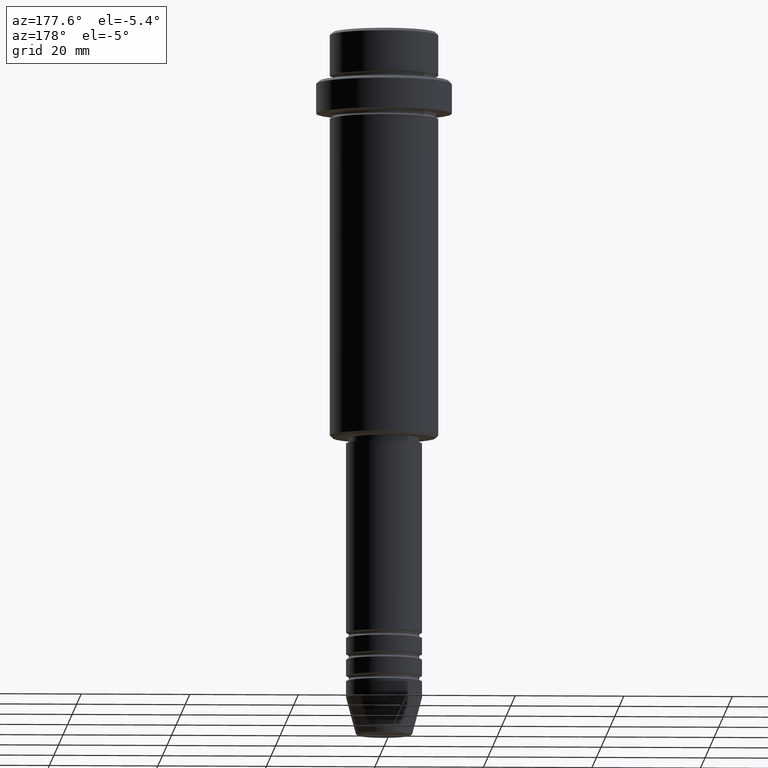
[diagram: clean part render]
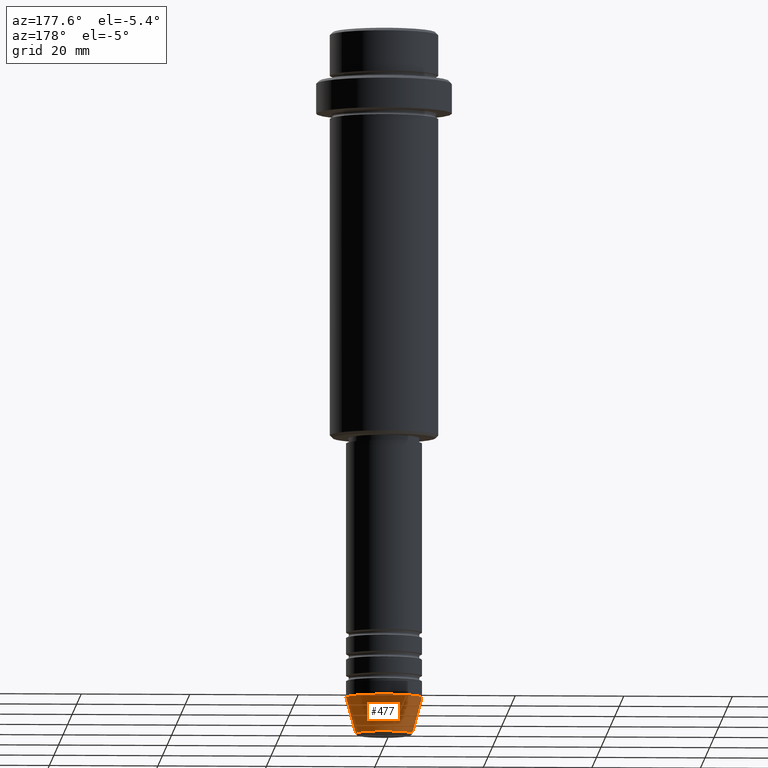
[diagram: same view with one face highlighted and labeled with its STEP entity id]
A machine part, auxiliary view. The second image highlights one B-rep face of the part: STEP entity #477.
In plain terms, the highlighted conical surface has half-angle 15 deg.
Its self-contained STEP definition (entity closure, byte-faithful):
#40 = VERTEX_POINT ( 'NONE', #544 ) ;
#52 = EDGE_CURVE ( 'NONE', #1149, #1186, #581, .T. ) ;
#54 = CIRCLE ( 'NONE', #101, 5.223655072137191269 ) ;
#62 = DIRECTION ( 'NONE',  ( -0.2588190451025214056, 3.169619151431772953E-17, 0.9659258262890680902 ) ) ;
#76 = VECTOR ( 'NONE', #1015, 1000.000000000000000 ) ;
#101 = AXIS2_PLACEMENT_3D ( 'NONE', #437, #443, #892 ) ;
#190 = LINE ( 'NONE', #509, #76 ) ;
#192 = ORIENTED_EDGE ( 'NONE', *, *, #442, .T. ) ;
#239 = DIRECTION ( 'NONE',  ( -0.000000000000000000, -0.000000000000000000, 1.000000000000000000 ) ) ;
#255 = CONICAL_SURFACE ( 'NONE', #603, 7.000000000000000000, 0.2617993877991501295 ) ;
#387 = VERTEX_POINT ( 'NONE', #627 ) ;
#437 = CARTESIAN_POINT ( 'NONE',  ( 0.000000000000000000, 0.000000000000000000, -129.6294095225512422 ) ) ;
#442 = EDGE_CURVE ( 'NONE', #387, #40, #54, .T. ) ;
#443 = DIRECTION ( 'NONE',  ( -0.000000000000000000, -0.000000000000000000, 1.000000000000000000 ) ) ;
#462 = DIRECTION ( 'NONE',  ( -0.000000000000000000, -0.000000000000000000, 1.000000000000000000 ) ) ;
#464 = CARTESIAN_POINT ( 'NONE',  ( 0.000000000000000000, 0.000000000000000000, -123.0000000000000000 ) ) ;
#469 = AXIS2_PLACEMENT_3D ( 'NONE', #464, #239, #788 ) ;
#477 = ADVANCED_FACE ( 'NONE', ( #548 ), #255, .T. ) ;
#509 = CARTESIAN_POINT ( 'NONE',  ( 7.000000000000000000, 0.000000000000000000, -123.0000000000000000 ) ) ;
#544 = CARTESIAN_POINT ( 'NONE',  ( -5.223655072137191269, 7.484830028987061160E-16, -129.6294095225512422 ) ) ;
#548 = FACE_OUTER_BOUND ( 'NONE', #903, .T. ) ;
#581 = CIRCLE ( 'NONE', #469, 7.000000000000000000 ) ;
#603 = AXIS2_PLACEMENT_3D ( 'NONE', #1098, #462, #1324 ) ;
#609 = ORIENTED_EDGE ( 'NONE', *, *, #52, .F. ) ;
#627 = CARTESIAN_POINT ( 'NONE',  ( 5.223655072137191269, 0.000000000000000000, -129.6294095225512422 ) ) ;
#645 = EDGE_CURVE ( 'NONE', #387, #1149, #190, .T. ) ;
#714 = LINE ( 'NONE', #832, #956 ) ;
#788 = DIRECTION ( 'NONE',  ( 1.000000000000000000, 0.000000000000000000, 0.000000000000000000 ) ) ;
#832 = CARTESIAN_POINT ( 'NONE',  ( -7.000000000000000000, 8.572527594031473190E-16, -123.0000000000000000 ) ) ;
#892 = DIRECTION ( 'NONE',  ( 1.000000000000000000, 0.000000000000000000, 0.000000000000000000 ) ) ;
#903 = EDGE_LOOP ( 'NONE', ( #192, #1085, #609, #1416 ) ) ;
#956 = VECTOR ( 'NONE', #62, 1000.000000000000000 ) ;
#1015 = DIRECTION ( 'NONE',  ( 0.2588190451025214056, 0.000000000000000000, 0.9659258262890680902 ) ) ;
#1043 = CARTESIAN_POINT ( 'NONE',  ( 7.000000000000000000, 0.000000000000000000, -123.0000000000000000 ) ) ;
#1085 = ORIENTED_EDGE ( 'NONE', *, *, #1106, .T. ) ;
#1098 = CARTESIAN_POINT ( 'NONE',  ( 0.000000000000000000, 0.000000000000000000, -123.0000000000000000 ) ) ;
#1106 = EDGE_CURVE ( 'NONE', #40, #1186, #714, .T. ) ;
#1149 = VERTEX_POINT ( 'NONE', #1043 ) ;
#1186 = VERTEX_POINT ( 'NONE', #1401 ) ;
#1324 = DIRECTION ( 'NONE',  ( 1.000000000000000000, 0.000000000000000000, 0.000000000000000000 ) ) ;
#1401 = CARTESIAN_POINT ( 'NONE',  ( -7.000000000000000000, 8.572527594031473190E-16, -123.0000000000000000 ) ) ;
#1416 = ORIENTED_EDGE ( 'NONE', *, *, #645, .F. ) ;